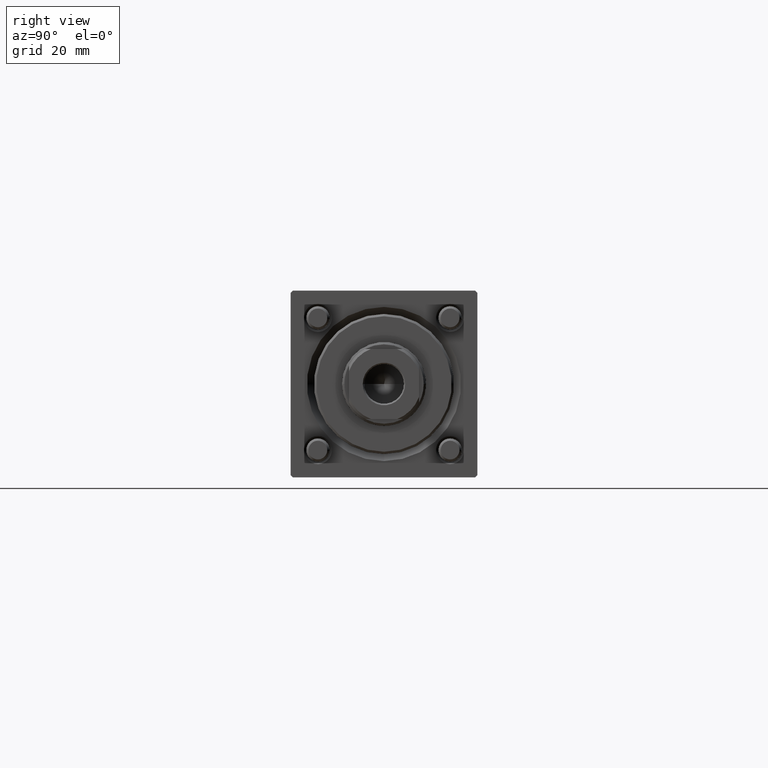
[diagram: clean part render]
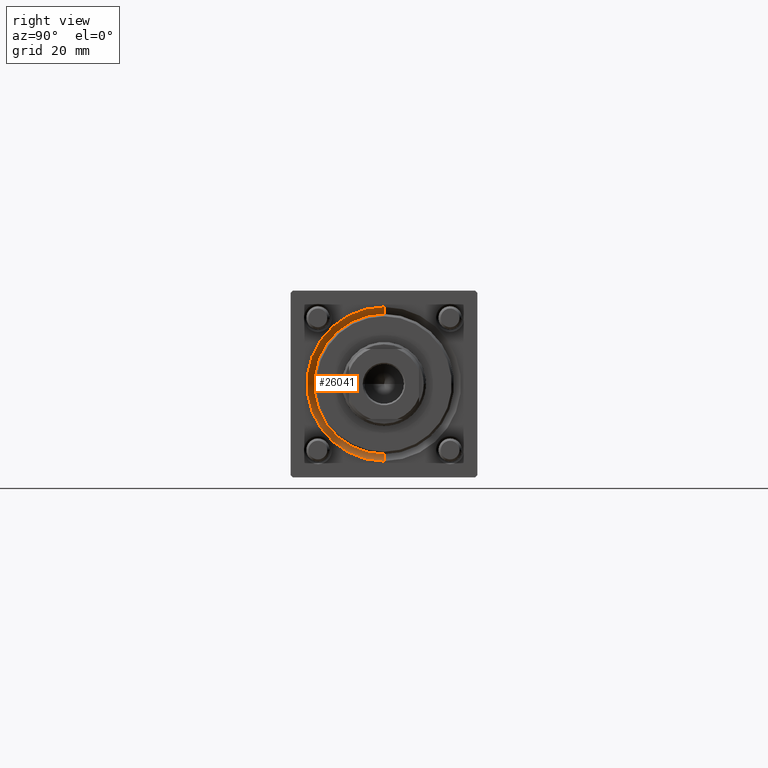
[diagram: same view with one face highlighted and labeled with its STEP entity id]
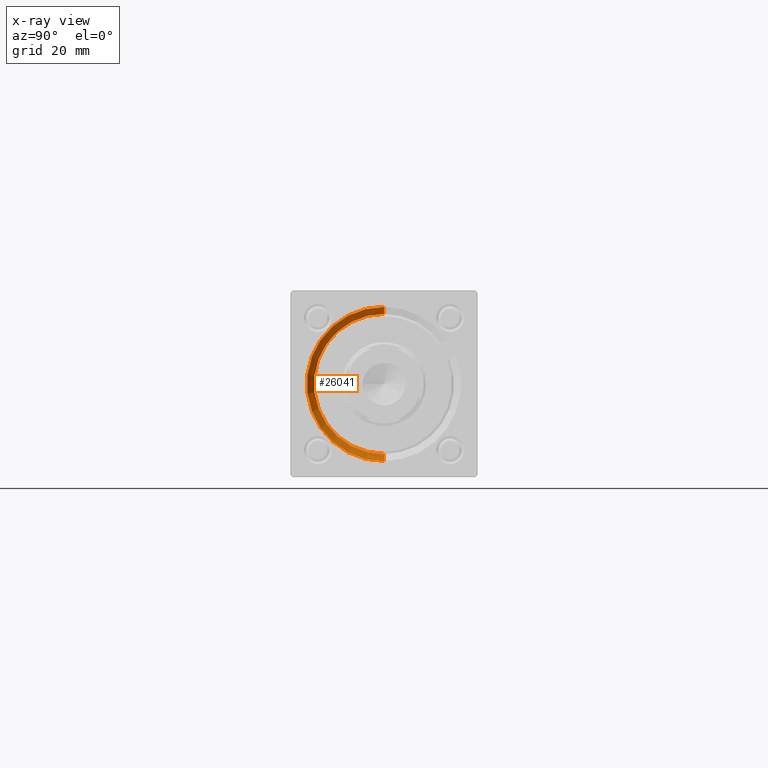
[diagram: x-ray of the same camera — body ghosted, the highlighted face saturated]
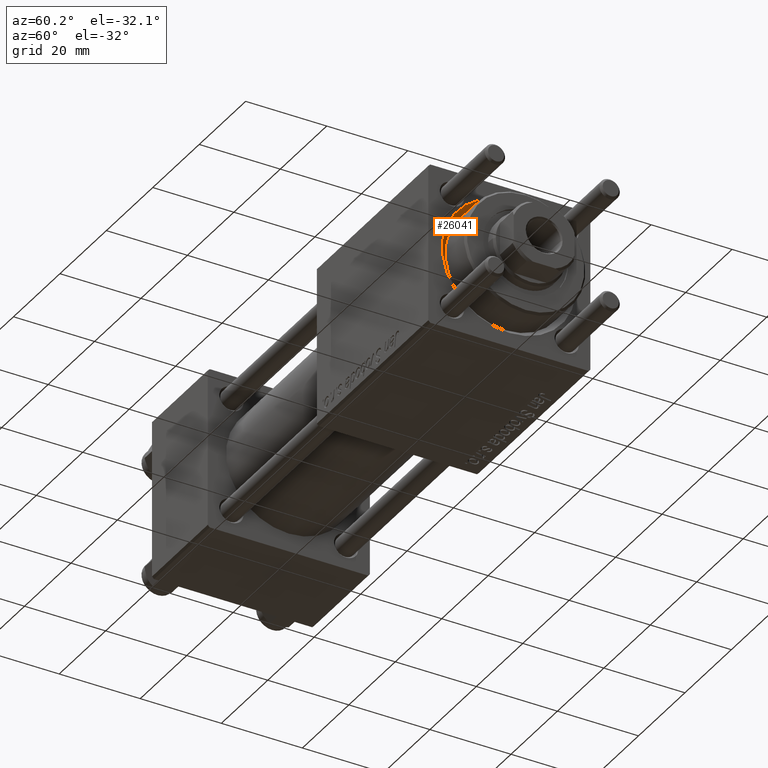
[diagram: same view with one face highlighted and labeled with its STEP entity id]
A machine part, right view. The second image highlights one B-rep face of the part: STEP entity #26041.
The next image is the same camera in x-ray: the body ghosted, the highlighted face saturated — about 0% of this face is hidden behind the body in this view.
A second angle (auxiliary view) of the same face is appended — the face is thin or edge-on in the first view.
In plain terms, the highlighted conical surface has half-angle 45 deg.
Its self-contained STEP definition (entity closure, byte-faithful):
#757 = EDGE_CURVE ( 'NONE', #17527, #34890, #27631, .T. ) ;
#6450 = ORIENTED_EDGE ( 'NONE', *, *, #11997, .F. ) ;
#9374 = ORIENTED_EDGE ( 'NONE', *, *, #33217, .F. ) ;
#9916 = DIRECTION ( 'NONE',  ( 1.000000000000000000, 0.000000000000000000, 0.000000000000000000 ) ) ;
#11157 = EDGE_CURVE ( 'NONE', #17527, #16509, #52773, .T. ) ;
#11346 = VECTOR ( 'NONE', #54178, 1000.000000000000114 ) ;
#11997 = EDGE_CURVE ( 'NONE', #34890, #28278, #32680, .T. ) ;
#13803 = CONICAL_SURFACE ( 'NONE', #54065, 15.00000000000000000, 0.7853981633974482790 ) ;
#16509 = VERTEX_POINT ( 'NONE', #19969 ) ;
#17527 = VERTEX_POINT ( 'NONE', #38468 ) ;
#17944 = EDGE_LOOP ( 'NONE', ( #18766, #35954, #9374, #6450 ) ) ;
#18766 = ORIENTED_EDGE ( 'NONE', *, *, #757, .F. ) ;
#19969 = CARTESIAN_POINT ( 'NONE',  ( 119.0000000000000142, 2.020667218593134678E-15, 16.50000000000001421 ) ) ;
#20680 = CARTESIAN_POINT ( 'NONE',  ( 117.5000000000000000, 0.000000000000000000, 0.000000000000000000 ) ) ;
#21238 = CARTESIAN_POINT ( 'NONE',  ( 119.0000000000000142, 0.000000000000000000, 0.000000000000000000 ) ) ;
#24295 = VECTOR ( 'NONE', #53606, 1000.000000000000114 ) ;
#26041 = ADVANCED_FACE ( 'NONE', ( #48900 ), #13803, .F. ) ;
#27631 = CIRCLE ( 'NONE', #32233, 15.00000000000000000 ) ;
#28278 = VERTEX_POINT ( 'NONE', #39590 ) ;
#32233 = AXIS2_PLACEMENT_3D ( 'NONE', #20680, #46480, #50225 ) ;
#32294 = AXIS2_PLACEMENT_3D ( 'NONE', #21238, #39561, #34986 ) ;
#32680 = LINE ( 'NONE', #40982, #11346 ) ;
#33217 = EDGE_CURVE ( 'NONE', #28278, #16509, #50629, .T. ) ;
#34890 = VERTEX_POINT ( 'NONE', #48303 ) ;
#34986 = DIRECTION ( 'NONE',  ( 0.000000000000000000, 0.000000000000000000, 1.000000000000000000 ) ) ;
#35158 = DIRECTION ( 'NONE',  ( 0.000000000000000000, 0.000000000000000000, -1.000000000000000000 ) ) ;
#35954 = ORIENTED_EDGE ( 'NONE', *, *, #11157, .T. ) ;
#36109 = CARTESIAN_POINT ( 'NONE',  ( 117.5000000000000000, 1.836970198721029589E-15, 15.00000000000000000 ) ) ;
#38468 = CARTESIAN_POINT ( 'NONE',  ( 117.5000000000000000, 1.836970198721029589E-15, 15.00000000000000000 ) ) ;
#39561 = DIRECTION ( 'NONE',  ( -1.000000000000000000, -0.000000000000000000, -0.000000000000000000 ) ) ;
#39590 = CARTESIAN_POINT ( 'NONE',  ( 119.0000000000000142, 0.000000000000000000, -16.50000000000001421 ) ) ;
#39742 = CARTESIAN_POINT ( 'NONE',  ( 117.5000000000000000, 0.000000000000000000, 0.000000000000000000 ) ) ;
#40982 = CARTESIAN_POINT ( 'NONE',  ( 117.5000000000000000, 0.000000000000000000, -15.00000000000000000 ) ) ;
#46480 = DIRECTION ( 'NONE',  ( 1.000000000000000000, 0.000000000000000000, 0.000000000000000000 ) ) ;
#48303 = CARTESIAN_POINT ( 'NONE',  ( 117.5000000000000000, 0.000000000000000000, -15.00000000000000000 ) ) ;
#48900 = FACE_OUTER_BOUND ( 'NONE', #17944, .T. ) ;
#50225 = DIRECTION ( 'NONE',  ( 0.000000000000000000, 0.000000000000000000, 1.000000000000000000 ) ) ;
#50629 = CIRCLE ( 'NONE', #32294, 16.50000000000001421 ) ;
#52773 = LINE ( 'NONE', #36109, #24295 ) ;
#53606 = DIRECTION ( 'NONE',  ( 0.7071067811865474617, 8.659560562354932858E-17, 0.7071067811865474617 ) ) ;
#54065 = AXIS2_PLACEMENT_3D ( 'NONE', #39742, #9916, #35158 ) ;
#54178 = DIRECTION ( 'NONE',  ( 0.7071067811865474617, 0.000000000000000000, -0.7071067811865474617 ) ) ;